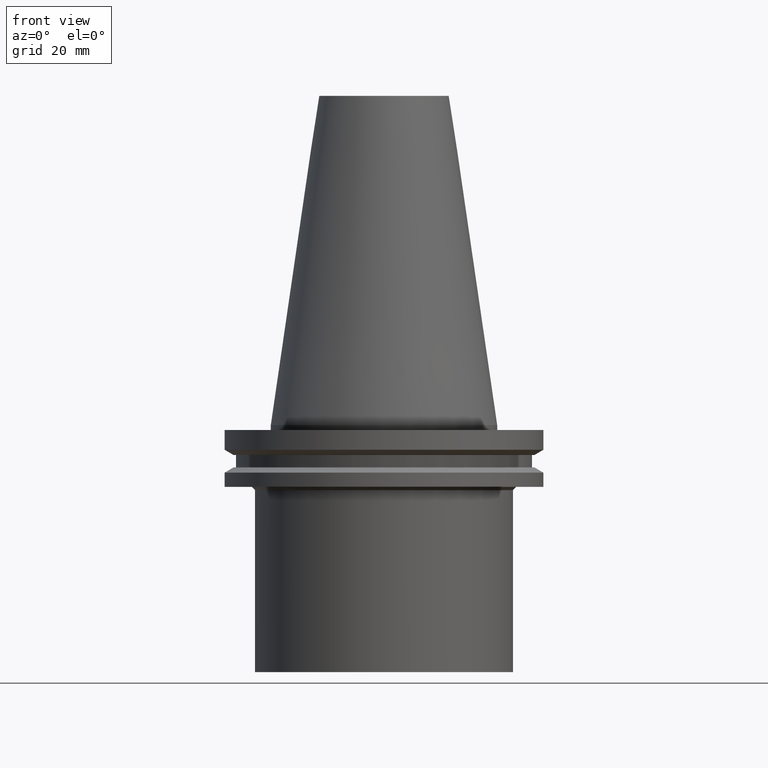
[diagram: clean part render]
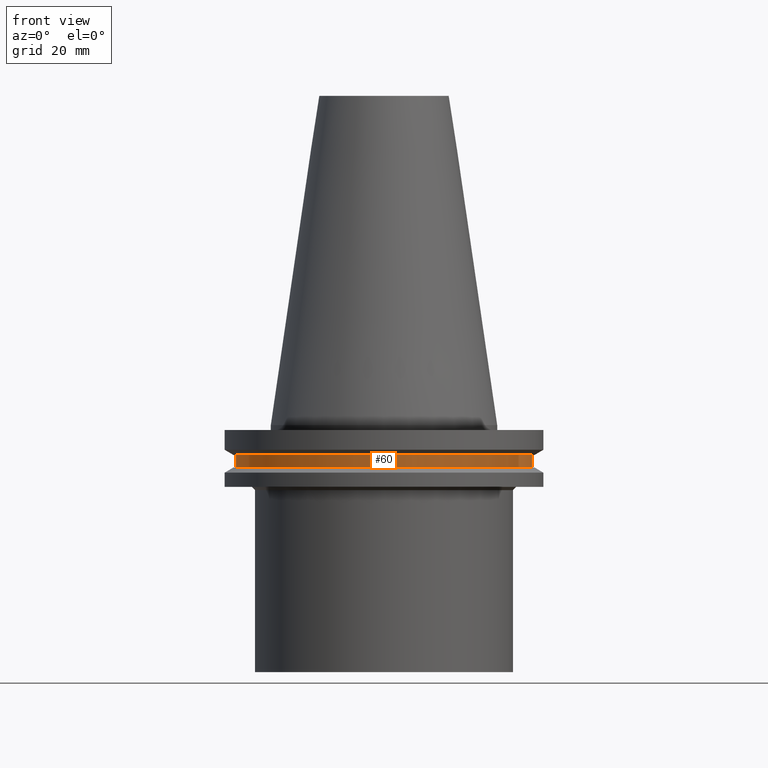
[diagram: same view with one face highlighted and labeled with its STEP entity id]
A machine part, front view. The second image highlights one B-rep face of the part: STEP entity #60.
In plain terms, the highlighted cylindrical surface (bore or boss wall) has radius 45.645 mm, axis along (0, 0, -1).
Its self-contained STEP definition (entity closure, byte-faithful):
#60=ADVANCED_FACE('Unnamed[1]',(#153,#154),#155,.T.);
#112=EDGE_CURVE('Unnamed[1]',#236,#236,#237,.T.);
#128=EDGE_CURVE('Unnamed[1]',#261,#261,#262,.T.);
#153=FACE_BOUND('',#279,.T.);
#154=FACE_BOUND('',#280,.T.);
#155=CYLINDRICAL_SURFACE('',#281,45.6449999999999);
#236=VERTEX_POINT('',#383);
#237=CIRCLE('',#384,45.6449999999999);
#261=VERTEX_POINT('',#414);
#262=CIRCLE('',#415,45.6449999999999);
#279=EDGE_LOOP('',(#422));
#280=EDGE_LOOP('',(#423));
#281=AXIS2_PLACEMENT_3D('',#424,#425,#426);
#383=CARTESIAN_POINT('',(5.63337527607778E-016,45.6449999999999,-9.19999999999993));
#384=AXIS2_PLACEMENT_3D('',#516,#517,#518);
#414=CARTESIAN_POINT('',(7.98469713044071E-016,45.6449999999999,-13.04));
#415=AXIS2_PLACEMENT_3D('',#545,#546,#547);
#422=ORIENTED_EDGE('',*,*,#128,.F.);
#423=ORIENTED_EDGE('',*,*,#112,.T.);
#424=CARTESIAN_POINT('',(6.80903620325927E-016,1.63650844622392E-014,-11.12));
#425=DIRECTION('',(6.12323399573677E-017,7.39044660191288E-016,-1.0));
#426=DIRECTION('',(-5.00805866072782E-032,1.0,7.39044660191288E-016));
#516=CARTESIAN_POINT('',(5.6333752760778E-016,1.49461187146719E-014,-9.19999999999996));
#517=DIRECTION('',(6.12323399573677E-017,7.39044660191288E-016,-1.0));
#518=DIRECTION('',(-5.00805866072782E-032,1.0,7.39044660191288E-016));
#545=CARTESIAN_POINT('',(7.98469713044074E-016,1.77840502098064E-014,-13.04));
#546=DIRECTION('',(6.12323399573677E-017,7.39044660191288E-016,-1.0));
#547=DIRECTION('',(-5.00805866072782E-032,1.0,7.39044660191288E-016));